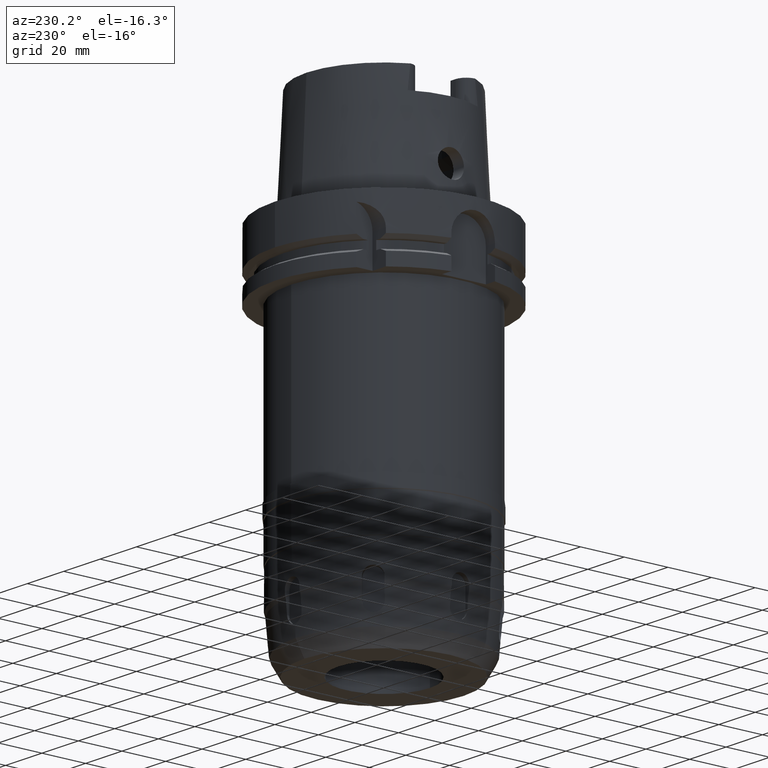
[diagram: clean part render]
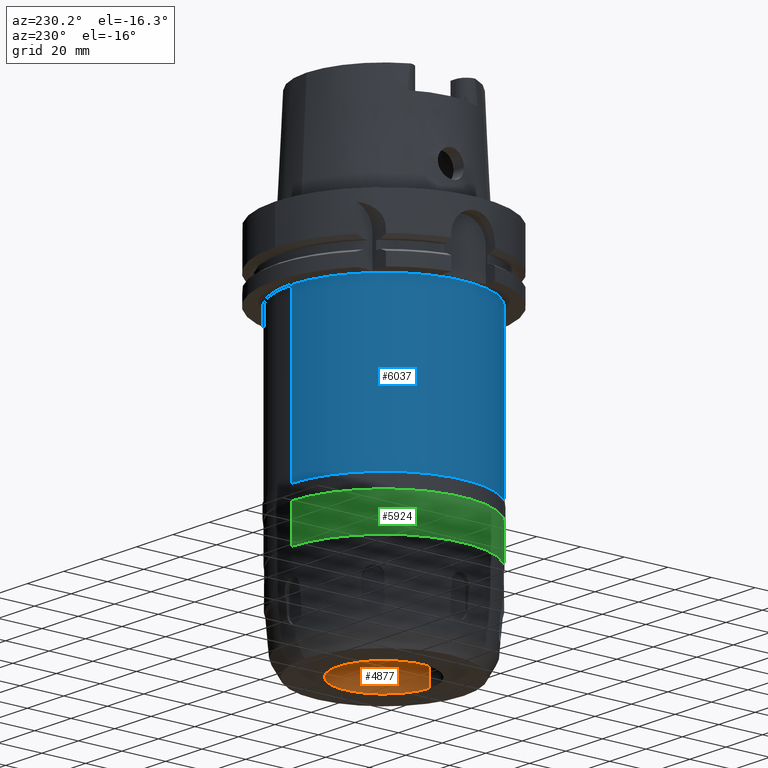
[diagram: same view with three faces highlighted in distinct colors, each labeled with its STEP entity id]
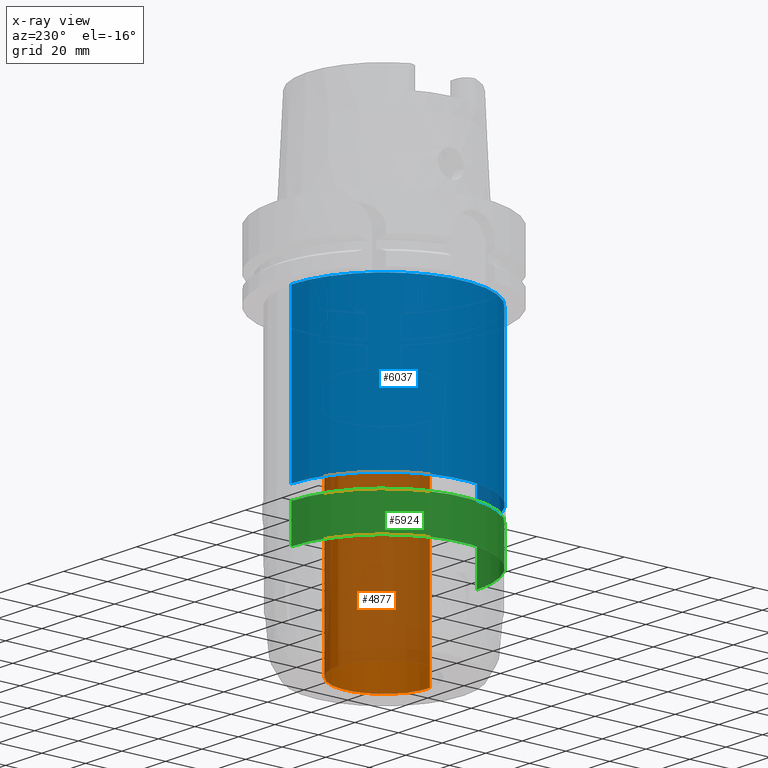
[diagram: x-ray of the same camera — body ghosted, the three highlighted faces saturated]
A machine part, auxiliary view with three faces highlighted in distinct colors.
The next image is the same camera in x-ray (body ghosted, the three faces saturated) — at least one of them is partly hidden behind the body in this view.
Their STEP definitions:

[orange] entity #4877 — the highlighted cylindrical surface (partial cylindrical patch) has radius 21 mm, axis along (0, 0, 1).
#963=CARTESIAN_POINT('',(0.E0,0.E0,-6.7E1));
#964=DIRECTION('',(0.E0,0.E0,1.E0));
#965=DIRECTION('',(0.E0,-1.E0,0.E0));
#966=AXIS2_PLACEMENT_3D('',#963,#964,#965);
#979=DIRECTION('',(0.E0,0.E0,1.E0));
#980=VECTOR('',#979,9.8E1);
#981=CARTESIAN_POINT('',(0.E0,2.1E1,-1.65E2));
#982=LINE('',#981,#980);
#986=DIRECTION('',(0.E0,0.E0,1.E0));
#987=VECTOR('',#986,9.8E1);
#988=CARTESIAN_POINT('',(0.E0,-2.1E1,-1.65E2));
#989=LINE('',#988,#987);
#1017=CARTESIAN_POINT('',(0.E0,0.E0,-1.65E2));
#1018=DIRECTION('',(0.E0,0.E0,-1.E0));
#1019=DIRECTION('',(0.E0,1.E0,0.E0));
#1020=AXIS2_PLACEMENT_3D('',#1017,#1018,#1019);
#3804=CARTESIAN_POINT('',(0.E0,-2.1E1,-6.7E1));
#3805=CARTESIAN_POINT('',(0.E0,2.1E1,-6.7E1));
#3806=VERTEX_POINT('',#3804);
#3807=VERTEX_POINT('',#3805);
#3808=CARTESIAN_POINT('',(0.E0,2.1E1,-1.65E2));
#3809=VERTEX_POINT('',#3808);
#3810=CARTESIAN_POINT('',(0.E0,-2.1E1,-1.65E2));
#3811=VERTEX_POINT('',#3810);
#4863=CARTESIAN_POINT('',(0.E0,0.E0,-1.7575E2));
#4864=DIRECTION('',(0.E0,0.E0,1.E0));
#4865=DIRECTION('',(0.E0,1.E0,0.E0));
#4866=AXIS2_PLACEMENT_3D('',#4863,#4864,#4865);
#4867=CYLINDRICAL_SURFACE('',#4866,2.1E1);
#4869=ORIENTED_EDGE('',*,*,#4868,.T.);
#4870=ORIENTED_EDGE('',*,*,#4856,.F.);
#4872=ORIENTED_EDGE('',*,*,#4871,.F.);
#4874=ORIENTED_EDGE('',*,*,#4873,.F.);
#4875=EDGE_LOOP('',(#4869,#4870,#4872,#4874));
#4876=FACE_OUTER_BOUND('',#4875,.F.);
#967=CIRCLE('',#966,2.1E1);
#1021=CIRCLE('',#1020,2.1E1);
#4856=EDGE_CURVE('',#3806,#3807,#967,.T.);
#4868=EDGE_CURVE('',#3809,#3807,#982,.T.);
#4871=EDGE_CURVE('',#3811,#3806,#989,.T.);
#4873=EDGE_CURVE('',#3809,#3811,#1021,.T.);
#4877=ADVANCED_FACE('',(#4876),#4867,.F.);

[blue] entity #6037 — the highlighted cylindrical surface (partial cylindrical patch) has radius 42.5 mm, axis along (0, 0, 1).
#2691=CARTESIAN_POINT('',(0.E0,0.E0,-1.02E2));
#2692=DIRECTION('',(0.E0,0.E0,1.E0));
#2693=DIRECTION('',(0.E0,1.E0,0.E0));
#2694=AXIS2_PLACEMENT_3D('',#2691,#2692,#2693);
#2699=DIRECTION('',(0.E0,0.E0,-1.E0));
#2700=VECTOR('',#2699,7.3E1);
#2701=CARTESIAN_POINT('',(0.E0,4.25E1,-2.9E1));
#2702=LINE('',#2701,#2700);
#2706=DIRECTION('',(0.E0,0.E0,-1.E0));
#2707=VECTOR('',#2706,7.3E1);
#2708=CARTESIAN_POINT('',(0.E0,-4.25E1,-2.9E1));
#2709=LINE('',#2708,#2707);
#2774=CARTESIAN_POINT('',(0.E0,0.E0,-2.9E1));
#2775=DIRECTION('',(0.E0,0.E0,-1.E0));
#2776=DIRECTION('',(0.E0,-1.E0,0.E0));
#2777=AXIS2_PLACEMENT_3D('',#2774,#2775,#2776);
#4042=CARTESIAN_POINT('',(0.E0,-4.25E1,-1.02E2));
#4043=CARTESIAN_POINT('',(0.E0,4.25E1,-1.02E2));
#4044=VERTEX_POINT('',#4042);
#4045=VERTEX_POINT('',#4043);
#4046=CARTESIAN_POINT('',(0.E0,4.25E1,-2.9E1));
#4047=VERTEX_POINT('',#4046);
#4048=CARTESIAN_POINT('',(0.E0,-4.25E1,-2.9E1));
#4049=VERTEX_POINT('',#4048);
#6025=CARTESIAN_POINT('',(0.E0,0.E0,-1.7575E2));
#6026=DIRECTION('',(0.E0,0.E0,1.E0));
#6027=DIRECTION('',(0.E0,1.E0,0.E0));
#6028=AXIS2_PLACEMENT_3D('',#6025,#6026,#6027);
#6029=CYLINDRICAL_SURFACE('',#6028,4.25E1);
#6030=ORIENTED_EDGE('',*,*,#6015,.F.);
#6032=ORIENTED_EDGE('',*,*,#6031,.F.);
#6033=ORIENTED_EDGE('',*,*,#6018,.T.);
#6034=ORIENTED_EDGE('',*,*,#6005,.F.);
#6035=EDGE_LOOP('',(#6030,#6032,#6033,#6034));
#6036=FACE_OUTER_BOUND('',#6035,.F.);
#2695=CIRCLE('',#2694,4.25E1);
#2778=CIRCLE('',#2777,4.25E1);
#6005=EDGE_CURVE('',#4045,#4044,#2695,.T.);
#6015=EDGE_CURVE('',#4047,#4045,#2702,.T.);
#6018=EDGE_CURVE('',#4049,#4044,#2709,.T.);
#6031=EDGE_CURVE('',#4049,#4047,#2778,.T.);
#6037=ADVANCED_FACE('',(#6036),#6029,.T.);

[green] entity #5924 — the highlighted cylindrical surface (partial cylindrical patch) has radius 42.5 mm, axis along (0, 0, 1).
#2570=CARTESIAN_POINT('',(0.E0,0.E0,-1.25E2));
#2571=DIRECTION('',(0.E0,0.E0,1.E0));
#2572=DIRECTION('',(0.E0,1.E0,0.E0));
#2573=AXIS2_PLACEMENT_3D('',#2570,#2571,#2572);
#2593=DIRECTION('',(0.E0,0.E0,-1.E0));
#2594=VECTOR('',#2593,1.665E1);
#2595=CARTESIAN_POINT('',(0.E0,-4.25E1,-1.0835E2));
#2596=LINE('',#2595,#2594);
#2600=DIRECTION('',(0.E0,0.E0,-1.E0));
#2601=VECTOR('',#2600,1.665E1);
#2602=CARTESIAN_POINT('',(0.E0,4.25E1,-1.0835E2));
#2603=LINE('',#2602,#2601);
#2645=CARTESIAN_POINT('',(0.E0,0.E0,-1.0835E2));
#2646=DIRECTION('',(0.E0,0.E0,-1.E0));
#2647=DIRECTION('',(0.E0,-1.E0,0.E0));
#2648=AXIS2_PLACEMENT_3D('',#2645,#2646,#2647);
#4026=CARTESIAN_POINT('',(0.E0,4.25E1,-1.25E2));
#4027=VERTEX_POINT('',#4026);
#4028=CARTESIAN_POINT('',(0.E0,-4.25E1,-1.25E2));
#4029=VERTEX_POINT('',#4028);
#4030=CARTESIAN_POINT('',(0.E0,4.25E1,-1.0835E2));
#4031=VERTEX_POINT('',#4030);
#4032=CARTESIAN_POINT('',(0.E0,-4.25E1,-1.0835E2));
#4033=VERTEX_POINT('',#4032);
#5910=CARTESIAN_POINT('',(0.E0,0.E0,-1.7575E2));
#5911=DIRECTION('',(0.E0,0.E0,1.E0));
#5912=DIRECTION('',(0.E0,1.E0,0.E0));
#5913=AXIS2_PLACEMENT_3D('',#5910,#5911,#5912);
#5914=CYLINDRICAL_SURFACE('',#5913,4.25E1);
#5916=ORIENTED_EDGE('',*,*,#5915,.F.);
#5918=ORIENTED_EDGE('',*,*,#5917,.F.);
#5920=ORIENTED_EDGE('',*,*,#5919,.T.);
#5921=ORIENTED_EDGE('',*,*,#5903,.F.);
#5922=EDGE_LOOP('',(#5916,#5918,#5920,#5921));
#5923=FACE_OUTER_BOUND('',#5922,.F.);
#2574=CIRCLE('',#2573,4.25E1);
#2649=CIRCLE('',#2648,4.25E1);
#5903=EDGE_CURVE('',#4027,#4029,#2574,.T.);
#5915=EDGE_CURVE('',#4031,#4027,#2603,.T.);
#5917=EDGE_CURVE('',#4033,#4031,#2649,.T.);
#5919=EDGE_CURVE('',#4033,#4029,#2596,.T.);
#5924=ADVANCED_FACE('',(#5923),#5914,.T.);